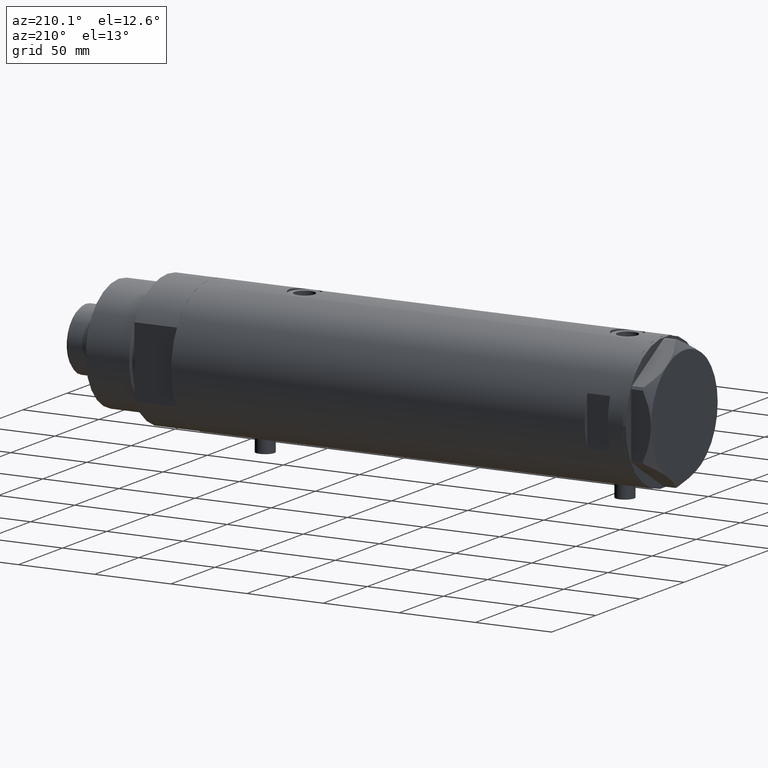
[diagram: clean part render]
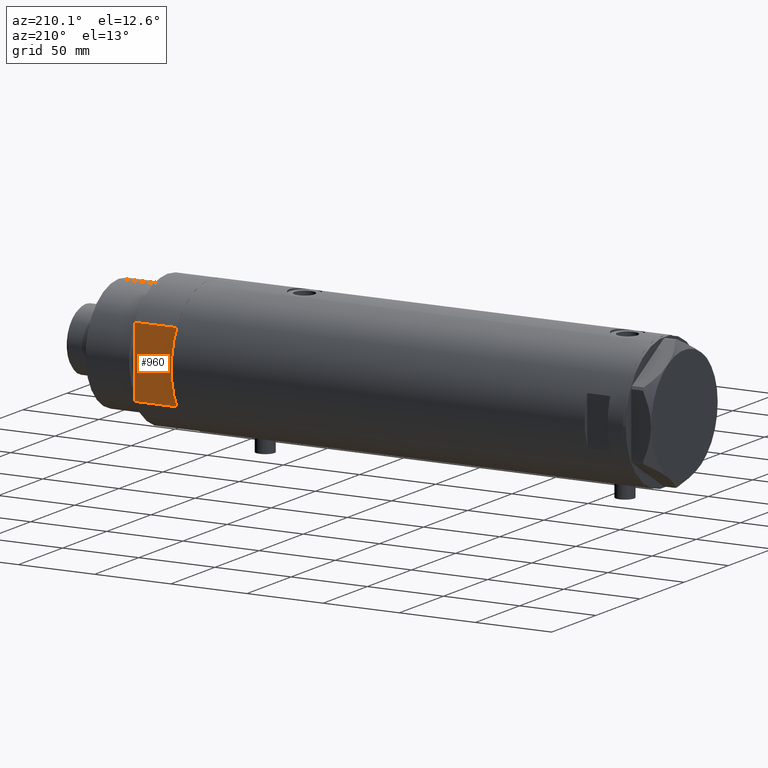
[diagram: same view with one face highlighted and labeled with its STEP entity id]
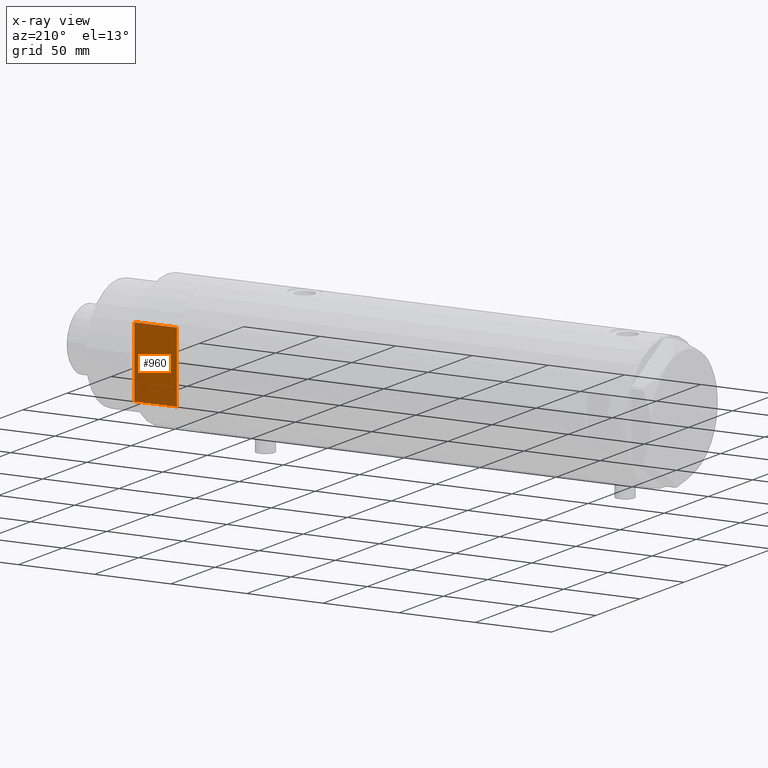
[diagram: x-ray of the same camera — body ghosted, the highlighted face saturated]
A machine part, auxiliary view. The second image highlights one B-rep face of the part: STEP entity #960.
The next image is the same camera in x-ray: the body ghosted, the highlighted face saturated — about 0% of this face is hidden behind the body in this view.
In plain terms, the highlighted planar face has unit normal (0, -1, -0).
Its self-contained STEP definition (entity closure, byte-faithful):
#103 = EDGE_CURVE ( 'NONE', #4423, #1622, #3819, .T. ) ;
#307 = VECTOR ( 'NONE', #3130, 1000.000000000000000 ) ;
#326 = DIRECTION ( 'NONE',  ( 0.000000000000000000, -0.000000000000000000, -1.000000000000000000 ) ) ;
#668 = VERTEX_POINT ( 'NONE', #1436 ) ;
#708 = ORIENTED_EDGE ( 'NONE', *, *, #3042, .T. ) ;
#713 = DIRECTION ( 'NONE',  ( 1.000000000000000000, 0.000000000000000000, 0.000000000000000000 ) ) ;
#743 = CARTESIAN_POINT ( 'NONE',  ( -13.91941090707505957, 37.50000000000000000, 0.000000000000000000 ) ) ;
#791 = ORIENTED_EDGE ( 'NONE', *, *, #1550, .F. ) ;
#847 = ORIENTED_EDGE ( 'NONE', *, *, #3745, .F. ) ;
#866 = ORIENTED_EDGE ( 'NONE', *, *, #3190, .T. ) ;
#960 = ADVANCED_FACE ( 'NONE', ( #2747 ), #996, .F. ) ;
#996 = PLANE ( 'NONE',  #4217 ) ;
#1069 = CARTESIAN_POINT ( 'NONE',  ( -23.01629857296780557, 37.50000000000000000, 0.000000000000000000 ) ) ;
#1119 = VERTEX_POINT ( 'NONE', #2229 ) ;
#1148 = CARTESIAN_POINT ( 'NONE',  ( -23.01629857296780557, 37.50000000000000000, 0.000000000000000000 ) ) ;
#1311 = ORIENTED_EDGE ( 'NONE', *, *, #103, .T. ) ;
#1360 = DIRECTION ( 'NONE',  ( 0.000000000000000000, -1.000000000000000000, 0.000000000000000000 ) ) ;
#1376 = DIRECTION ( 'NONE',  ( 1.000000000000000000, 0.000000000000000000, 0.000000000000000000 ) ) ;
#1379 = CARTESIAN_POINT ( 'NONE',  ( -23.01629857296780557, 37.50000000000000000, 0.000000000000000000 ) ) ;
#1392 = EDGE_CURVE ( 'NONE', #4423, #1878, #2869, .T. ) ;
#1436 = CARTESIAN_POINT ( 'NONE',  ( 23.01629857296780557, 37.50000000000000000, 27.89999999999999858 ) ) ;
#1484 = VECTOR ( 'NONE', #3193, 1000.000000000000000 ) ;
#1550 = EDGE_CURVE ( 'NONE', #1119, #1745, #2888, .T. ) ;
#1622 = VERTEX_POINT ( 'NONE', #2370 ) ;
#1745 = VERTEX_POINT ( 'NONE', #3852 ) ;
#1780 = DIRECTION ( 'NONE',  ( 1.000000000000000000, 0.000000000000000000, 0.000000000000000000 ) ) ;
#1828 = EDGE_LOOP ( 'NONE', ( #866, #708, #847, #791, #4391, #2250, #1311 ) ) ;
#1878 = VERTEX_POINT ( 'NONE', #743 ) ;
#1926 = LINE ( 'NONE', #4445, #2012 ) ;
#2012 = VECTOR ( 'NONE', #2719, 1000.000000000000000 ) ;
#2051 = LINE ( 'NONE', #3470, #4528 ) ;
#2200 = DIRECTION ( 'NONE',  ( 1.000000000000000000, 0.000000000000000000, 0.000000000000000000 ) ) ;
#2229 = CARTESIAN_POINT ( 'NONE',  ( 13.91941090707505957, 37.50000000000000000, 0.000000000000000000 ) ) ;
#2250 = ORIENTED_EDGE ( 'NONE', *, *, #1392, .F. ) ;
#2271 = CARTESIAN_POINT ( 'NONE',  ( -23.01629857296780557, 37.50000000000000000, 0.000000000000000000 ) ) ;
#2370 = CARTESIAN_POINT ( 'NONE',  ( -23.01629857296780557, 37.50000000000000000, 27.89999999999999858 ) ) ;
#2397 = VECTOR ( 'NONE', #713, 1000.000000000000000 ) ;
#2599 = VECTOR ( 'NONE', #2200, 1000.000000000000000 ) ;
#2719 = DIRECTION ( 'NONE',  ( -0.000000000000000000, -0.000000000000000000, 1.000000000000000000 ) ) ;
#2747 = FACE_OUTER_BOUND ( 'NONE', #1828, .T. ) ;
#2869 = LINE ( 'NONE', #1379, #1484 ) ;
#2888 = LINE ( 'NONE', #2271, #2599 ) ;
#3042 = EDGE_CURVE ( 'NONE', #4094, #668, #2051, .T. ) ;
#3045 = CARTESIAN_POINT ( 'NONE',  ( -23.01629857296780557, 37.50000000000000000, 0.000000000000000000 ) ) ;
#3130 = DIRECTION ( 'NONE',  ( -0.000000000000000000, -0.000000000000000000, 1.000000000000000000 ) ) ;
#3190 = EDGE_CURVE ( 'NONE', #1622, #4094, #3484, .T. ) ;
#3193 = DIRECTION ( 'NONE',  ( 1.000000000000000000, 0.000000000000000000, 0.000000000000000000 ) ) ;
#3470 = CARTESIAN_POINT ( 'NONE',  ( -23.01629857296780557, 37.50000000000000000, 27.89999999999999858 ) ) ;
#3484 = LINE ( 'NONE', #3544, #3997 ) ;
#3544 = CARTESIAN_POINT ( 'NONE',  ( -23.01629857296780557, 37.50000000000000000, 27.89999999999999858 ) ) ;
#3745 = EDGE_CURVE ( 'NONE', #1745, #668, #1926, .T. ) ;
#3796 = CARTESIAN_POINT ( 'NONE',  ( -23.01629857296780557, 37.50000000000000000, 0.000000000000000000 ) ) ;
#3807 = EDGE_CURVE ( 'NONE', #1878, #1119, #3862, .T. ) ;
#3819 = LINE ( 'NONE', #1069, #307 ) ;
#3852 = CARTESIAN_POINT ( 'NONE',  ( 23.01629857296780557, 37.50000000000000000, 0.000000000000000000 ) ) ;
#3862 = LINE ( 'NONE', #1148, #2397 ) ;
#3997 = VECTOR ( 'NONE', #1780, 1000.000000000000000 ) ;
#4094 = VERTEX_POINT ( 'NONE', #4275 ) ;
#4217 = AXIS2_PLACEMENT_3D ( 'NONE', #3796, #1360, #326 ) ;
#4275 = CARTESIAN_POINT ( 'NONE',  ( 0.000000000000000000, 37.50000000000000000, 27.89999999999999858 ) ) ;
#4391 = ORIENTED_EDGE ( 'NONE', *, *, #3807, .F. ) ;
#4423 = VERTEX_POINT ( 'NONE', #3045 ) ;
#4445 = CARTESIAN_POINT ( 'NONE',  ( 23.01629857296780557, 37.50000000000000000, 0.000000000000000000 ) ) ;
#4528 = VECTOR ( 'NONE', #1376, 1000.000000000000000 ) ;